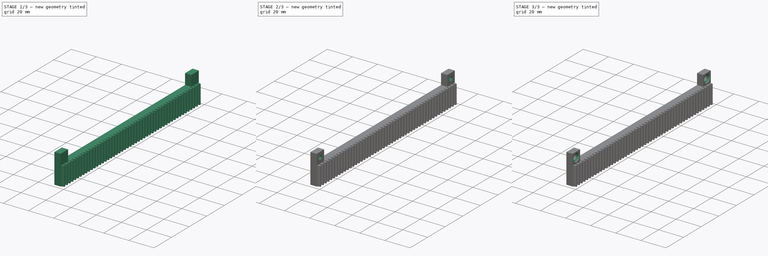
[diagram: build sequence overview — one tinted view per stage of 3, left to right]
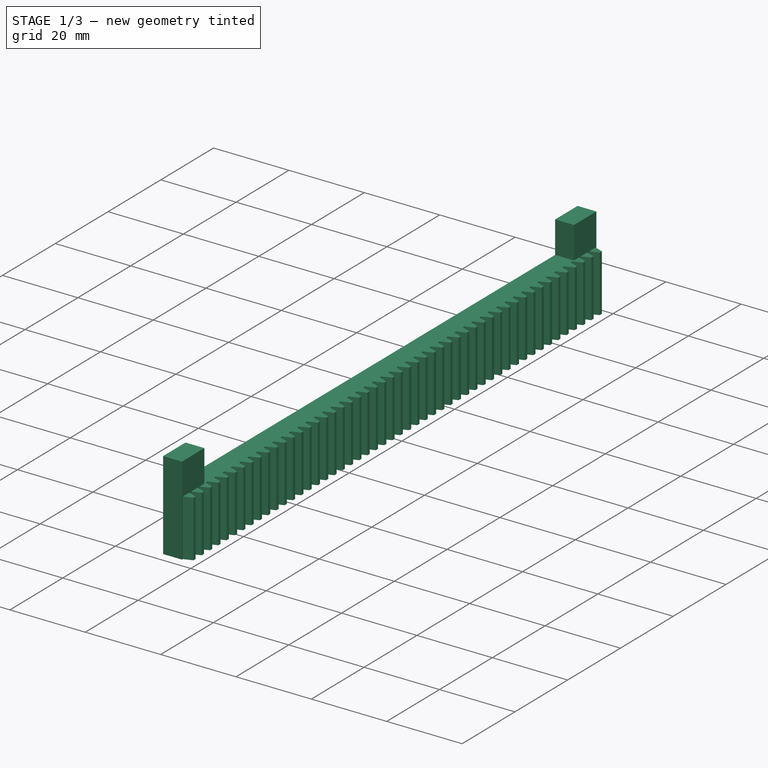
[diagram: stage 1 of 3 — iso view after this stage's code; geometry added in this stage tinted green]
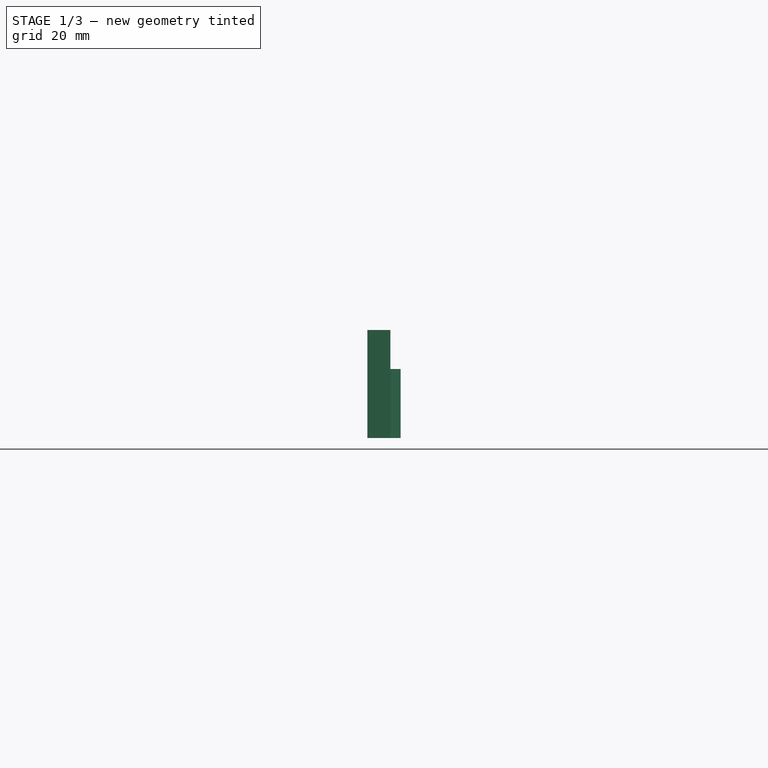
[diagram: stage 1 of 3 — front view after this stage's code; geometry added in this stage tinted green]
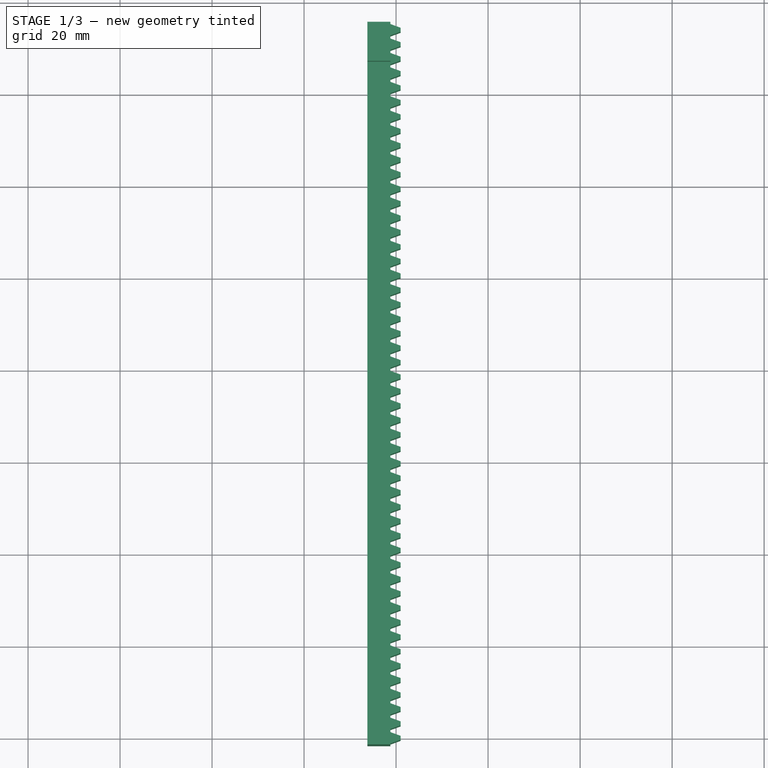
[diagram: stage 1 of 3 — top view after this stage's code; geometry added in this stage tinted green]
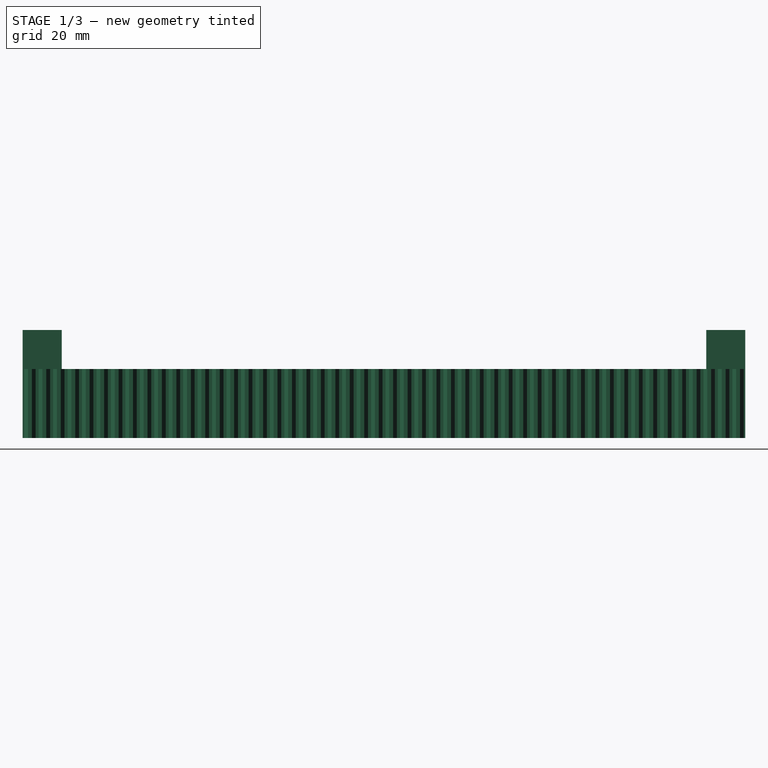
[diagram: stage 1 of 3 — right view after this stage's code; geometry added in this stage tinted green]
FCSTD DOCUMENT  (FreeCAD 0.19R)
Label: y-axis-track
License: All rights reserved
LicenseURL: http://en.wikipedia.org/wiki/All_rights_reserved
objects: Sketcher::SketchObject×3, PartDesign::Pocket×2, PartDesign::Chamfer×2, PartDesign::FeaturePython×1, PartDesign::Pad×1, PartDesign::Body×1
note: 15 computed .brp shape members not serialized (recipe doc carries the construction recipe); baked Part::Feature solids carry a one-line shape summary decoded from their .brp

FEATURE [PartDesign::FeaturePython] involuterack  # WARN: FeaturePython — macro-defined, semantics opaque (R4)
  AttacherType = Attacher::AttachEngine3D
  add_endings = true
  beta = 0
  clearance = 0.25
  double_helix = false
  head = 0
  height = 15
  module = 1
  pressure_angle = 20
  properties_from_tool = true
  simplified = false
  teeth = 50
  thickness = 5
  transverse_pitch = 3.14159
  version = 0.0.3
FEATURE [Sketcher::SketchObject] Sketch
  FullyConstrained = true
  MapMode = 5
  Placement = pos=(0,0,15) rot=(0,0,1;0rad)
  Support = -> [involuterack]
  sketch-geometry (8):
    g0: LineSegment StartX=-6.25 StartY=-1.5708 StartZ=0 EndX=-1.25 EndY=-1.5708 EndZ=0
    g1: LineSegment StartX=-1.25 StartY=-1.5708 StartZ=0 EndX=-1.25 EndY=6.9292 EndZ=0
    g2: LineSegment StartX=-1.25 StartY=6.9292 StartZ=0 EndX=-6.25 EndY=6.9292 EndZ=0
    g3: LineSegment StartX=-6.25 StartY=6.9292 StartZ=0 EndX=-6.25 EndY=-1.5708 EndZ=0
    g4: LineSegment StartX=-6.25 StartY=155.509 StartZ=0 EndX=-1.25 EndY=155.509 EndZ=0
    g5: LineSegment StartX=-1.25 StartY=155.509 StartZ=0 EndX=-1.25 EndY=147.009 EndZ=0
    g6: LineSegment StartX=-1.25 StartY=147.009 StartZ=0 EndX=-6.25 EndY=147.009 EndZ=0
    g7: LineSegment StartX=-6.25 StartY=147.009 StartZ=0 EndX=-6.25 EndY=155.509 EndZ=0
  constraints (24):
    c: Coincident(g0,g1)
    c: Coincident(g1,g2)
    c: Coincident(g2,g3)
    c: Coincident(g3,g0)
    c: Horizontal(g0)
    c: Horizontal(g2)
    c: Vertical(g1)
    c: Vertical(g3)
    c: DistanceX(g2,g2) = 5
    c: DistanceY(g3,g3) = 8.5
    c: DistanceX(g0,g-1) = 1.25
    c: DistanceY(g0,g-1) = 1.5708
    c: Coincident(g4,g5)
    c: Coincident(g5,g6)
    c: Coincident(g6,g7)
    c: Coincident(g7,g4)
    c: Horizontal(g4)
    c: Horizontal(g6)
    c: Vertical(g5)
    c: Vertical(g7)
    c: Equal(g4,g2)
    c: Equal(g3,g7)
    c: DistanceX(g5,g-1) = 1.25
    c: DistanceY(g-1,g5) = 147.009
FEATURE [PartDesign::Pad] Pad
  BaseFeature = -> involuterack
  Direction = (1,1,1)
  Length = 8.5
  Length2 = 100
  Profile = -> Sketch
  Type = 0
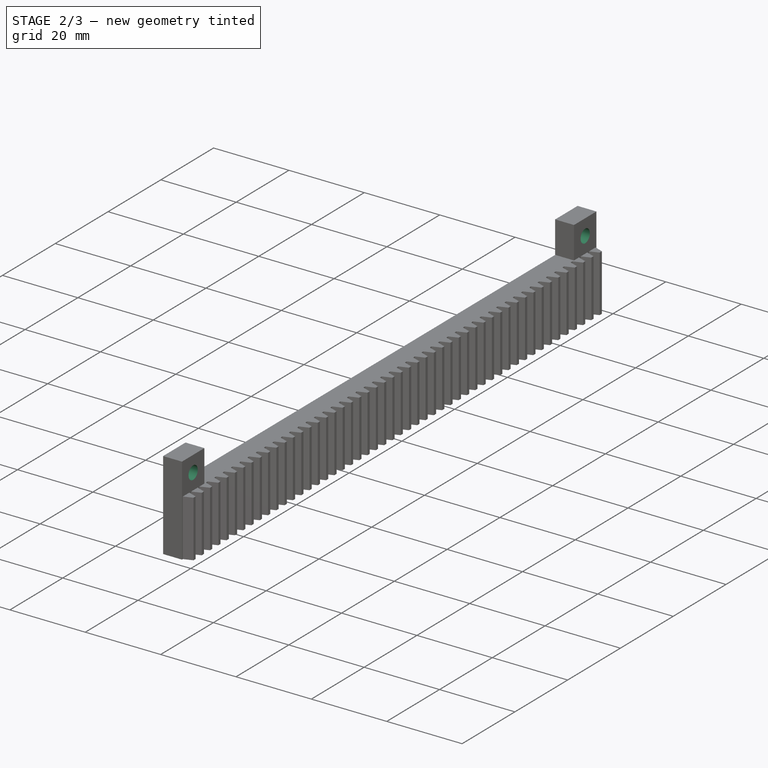
[diagram: stage 2 of 3 — iso view after this stage's code; geometry added in this stage tinted green]
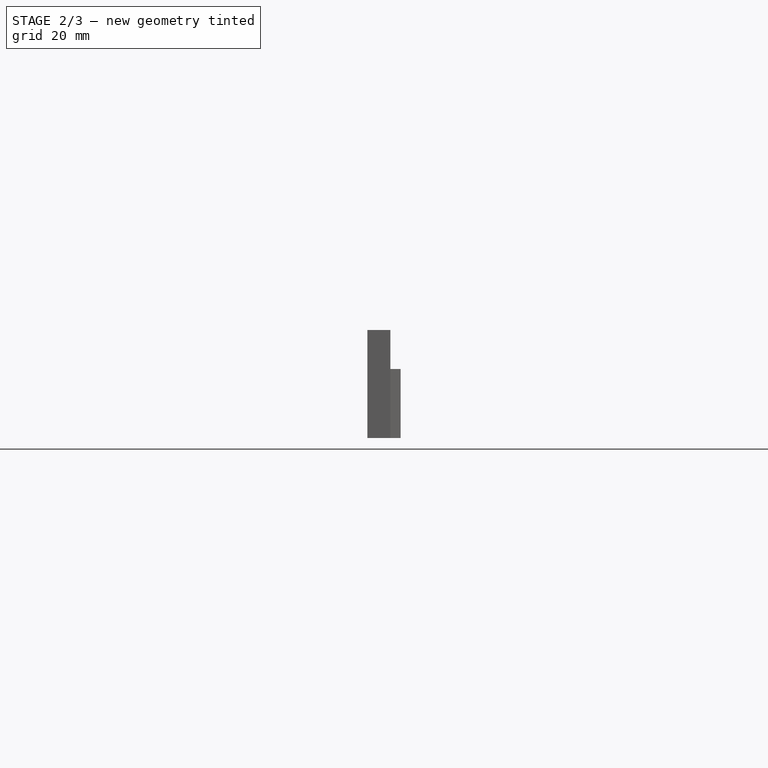
[diagram: stage 2 of 3 — front view after this stage's code; geometry added in this stage tinted green]
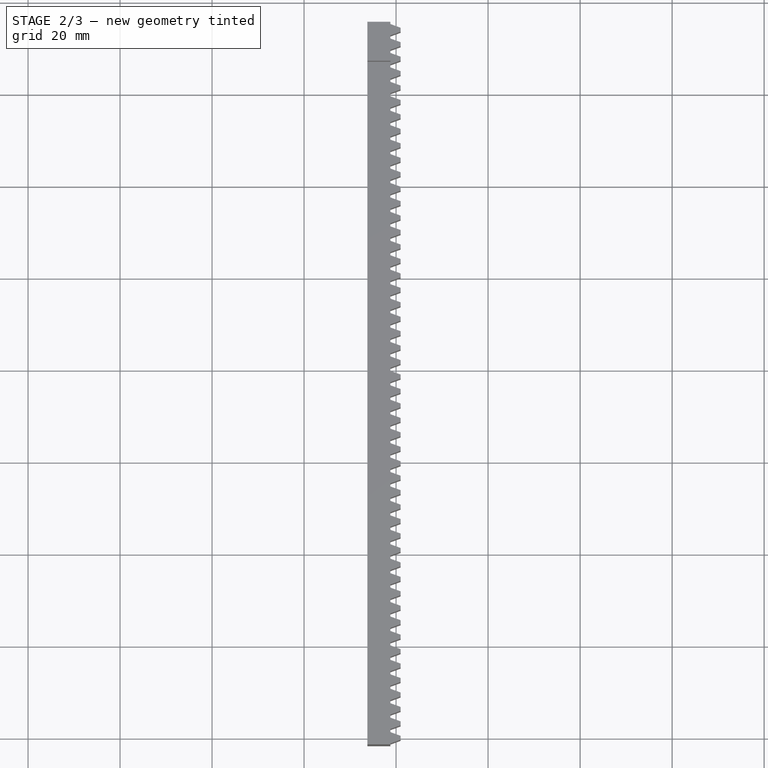
[diagram: stage 2 of 3 — top view after this stage's code; geometry added in this stage tinted green]
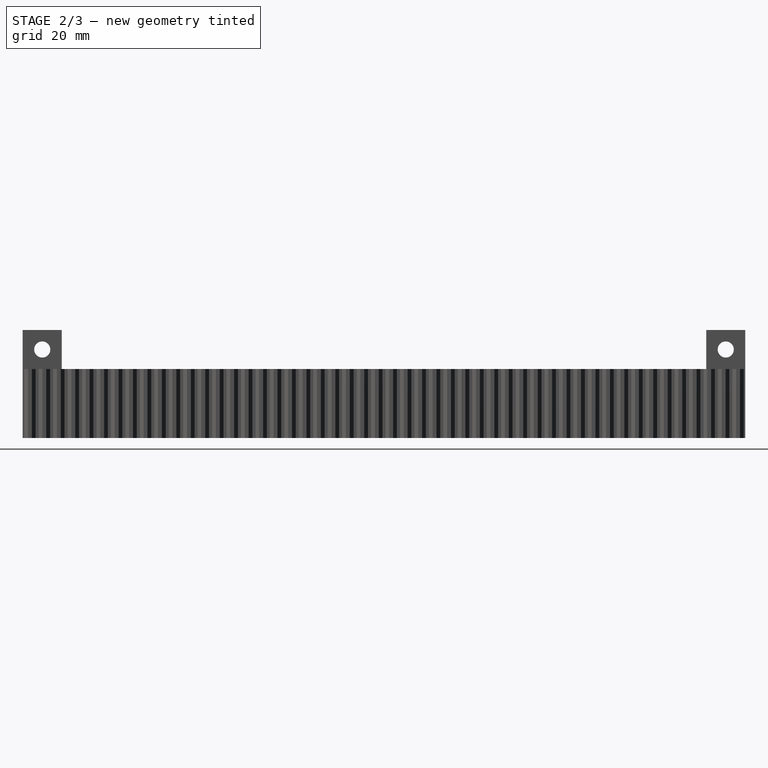
[diagram: stage 2 of 3 — right view after this stage's code; geometry added in this stage tinted green]
FEATURE [Sketcher::SketchObject] Sketch001
  FullyConstrained = true
  MapMode = 5
  Placement = pos=(-1.25,0,0) rot=(0.57735,0.57735,0.57735;2.0944rad)
  Support = -> [Pad]
  sketch-geometry (7):
    g0: LineSegment StartX=6.9292 StartY=23.5 StartZ=0 EndX=-1.5708 EndY=23.5 EndZ=0
    g1: LineSegment StartX=-1.5708 StartY=23.5 StartZ=0 EndX=-1.5708 EndY=15 EndZ=0
    g2: LineSegment StartX=-1.5708 StartY=15 StartZ=0 EndX=6.9292 EndY=15 EndZ=0
    g3: LineSegment StartX=6.9292 StartY=15 StartZ=0 EndX=6.9292 EndY=23.5 EndZ=0
    g4: LineSegment StartX=-1.5708 StartY=15 StartZ=0 EndX=6.9292 EndY=23.5 EndZ=0
    g5: LineSegment StartX=-1.5708 StartY=23.5 StartZ=0 EndX=6.9292 EndY=15 EndZ=0
    g6: Circle CenterX=2.6792 CenterY=19.25 CenterZ=0 NormalX=0 NormalY=0 NormalZ=1 AngleXU=0 Radius=1.75
  constraints (19):
    c: Coincident(g0,g1)
    c: Coincident(g1,g2)
    c: Coincident(g2,g3)
    c: Coincident(g3,g0)
    c: Horizontal(g0)
    c: Horizontal(g2)
    c: Vertical(g1)
    c: Vertical(g3)
    c: Equal(g0,g3)
    c: DistanceX(g0,g0) = 8.5
    c: DistanceY(g-1,g1) = 15
    c: DistanceX(g1,g-1) = 1.5708
    c: Coincident(g4,g1)
    c: Coincident(g4,g0)
    c: Coincident(g5,g0)
    c: Coincident(g5,g2)
    c: PointOnObject(g6,g4)
    c: PointOnObject(g6,g5)
    c: Diameter(g6) = 3.5
FEATURE [PartDesign::Pocket] Pocket
  BaseFeature = -> Pad
  Length = 5
  Length2 = 100
  Profile = -> Sketch001
  Type = 1
FEATURE [Sketcher::SketchObject] Sketch002
  FullyConstrained = true
  MapMode = 5
  Placement = pos=(-1.25,0,0) rot=(0.57735,0.57735,0.57735;2.0944rad)
  Support = -> [Pocket]
  sketch-geometry (7):
    g0: LineSegment StartX=155.509 StartY=23.5 StartZ=0 EndX=147.009 EndY=23.5 EndZ=0
    g1: LineSegment StartX=147.009 StartY=23.5 StartZ=0 EndX=147.009 EndY=15 EndZ=0
    g2: LineSegment StartX=147.009 StartY=15 StartZ=0 EndX=155.509 EndY=15 EndZ=0
    g3: LineSegment StartX=155.509 StartY=15 StartZ=0 EndX=155.509 EndY=23.5 EndZ=0
    g4: LineSegment StartX=155.509 StartY=15 StartZ=0 EndX=147.009 EndY=23.5 EndZ=0
    g5: LineSegment StartX=147.009 StartY=15 StartZ=0 EndX=155.509 EndY=23.5 EndZ=0
    g6: Circle CenterX=151.259 CenterY=19.25 CenterZ=0 NormalX=0 NormalY=0 NormalZ=1 AngleXU=0 Radius=1.75
  constraints (19):
    c: Coincident(g0,g1)
    c: Coincident(g1,g2)
    c: Coincident(g2,g3)
    c: Coincident(g3,g0)
    c: Horizontal(g0)
    c: Horizontal(g2)
    c: Vertical(g1)
    c: Vertical(g3)
    c: Coincident(g4,g2)
    c: Coincident(g4,g0)
    c: Coincident(g5,g1)
    c: Coincident(g5,g0)
    c: PointOnObject(g6,g5)
    c: PointOnObject(g6,g4)
    c: Equal(g0,g3)
    c: DistanceX(g0,g0) = 8.5
    c: DistanceY(g-1,g1) = 15
    c: DistanceX(g-1,g1) = 147.009
    c: Diameter(g6) = 3.5
FEATURE [PartDesign::Pocket] Pocket001
  BaseFeature = -> Pocket
  Length = 5
  Length2 = 100
  Profile = -> Sketch002
  Type = 1
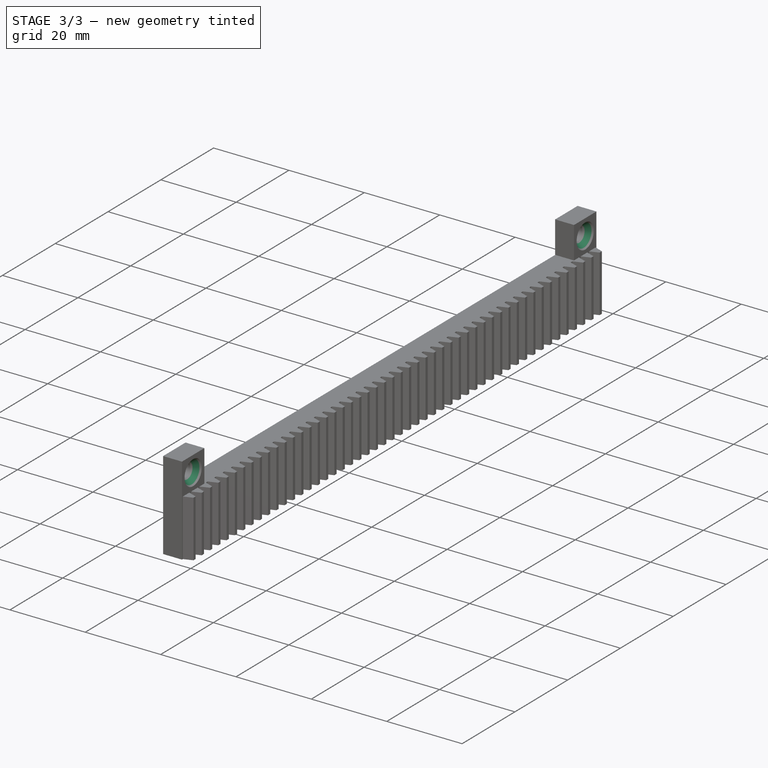
[diagram: stage 3 of 3 — iso view after this stage's code; geometry added in this stage tinted green]
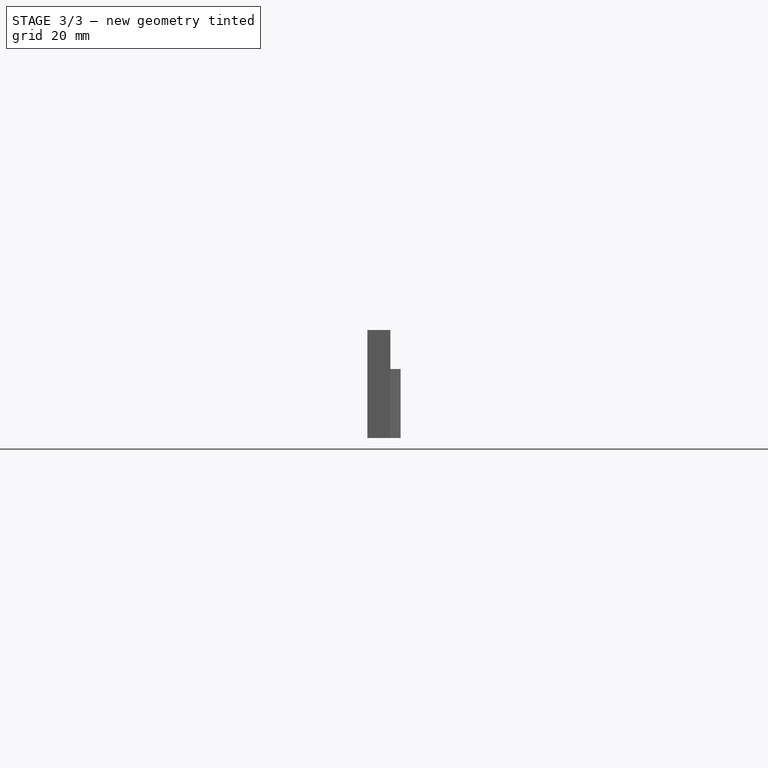
[diagram: stage 3 of 3 — front view after this stage's code; geometry added in this stage tinted green]
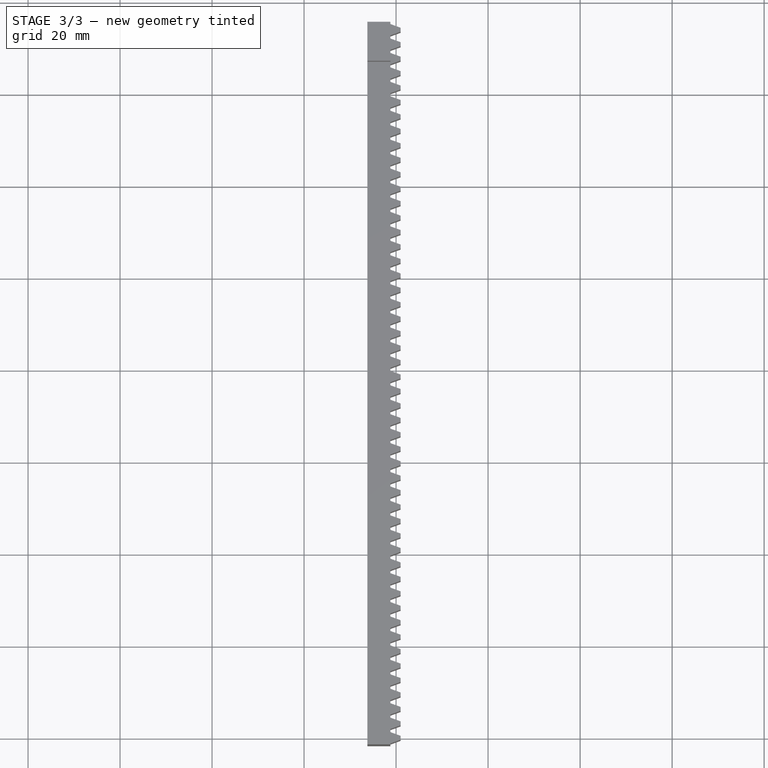
[diagram: stage 3 of 3 — top view after this stage's code; geometry added in this stage tinted green]
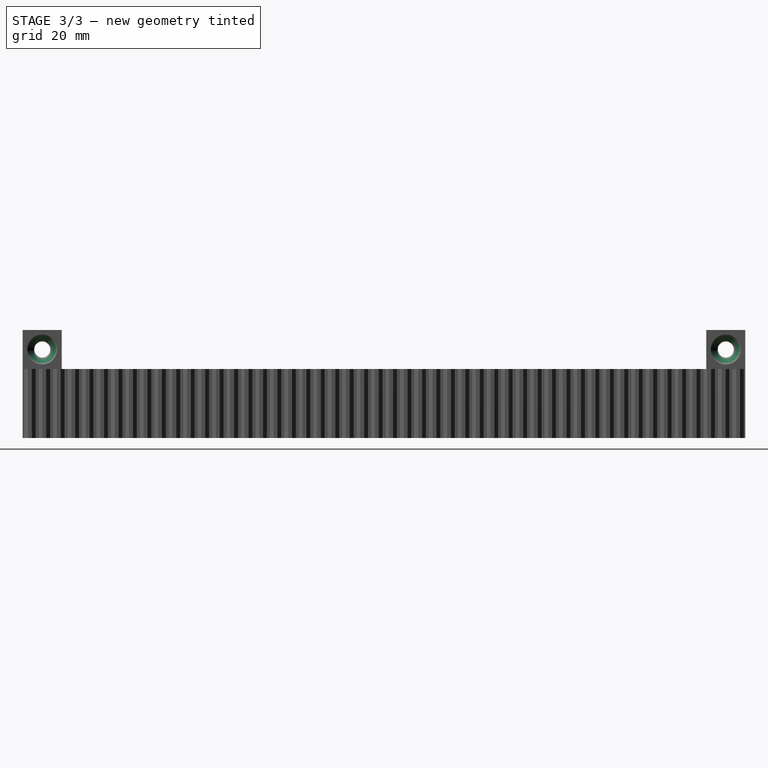
[diagram: stage 3 of 3 — right view after this stage's code; geometry added in this stage tinted green]
FEATURE [PartDesign::Chamfer] Chamfer
  Angle = 45
  Base = -> Pocket001 [Edge424]
  BaseFeature = -> Pocket001
  ChamferType = 1
  FlipDirection = false
  Size = 1.5
  Size2 = 2
  SupportTransform = false
FEATURE [PartDesign::Chamfer] Chamfer001
  Angle = 45
  Base = -> Chamfer [Edge444]
  BaseFeature = -> Chamfer
  ChamferType = 1
  FlipDirection = false
  Size = 1.5
  Size2 = 2
  SupportTransform = false
FEATURE [PartDesign::Body] Body
  Group = -> [involuterack,Sketch,Pad,Sketch001,Pocket,Sketch002,Pocket001,Chamfer,Chamfer001]
  Origin = -> Origin
  Tip = -> Chamfer001
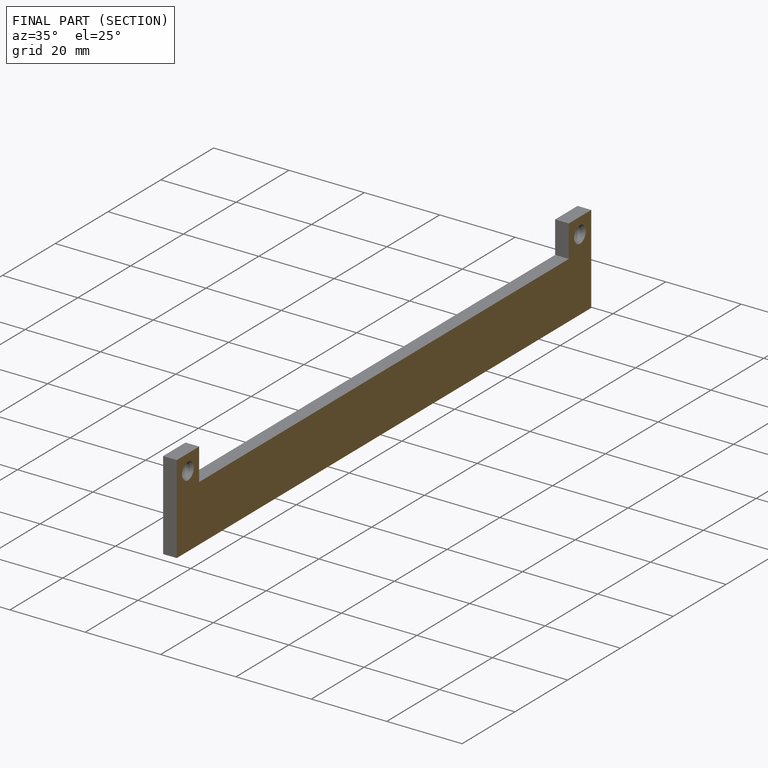
[diagram: finished part — half-section view (interior)]
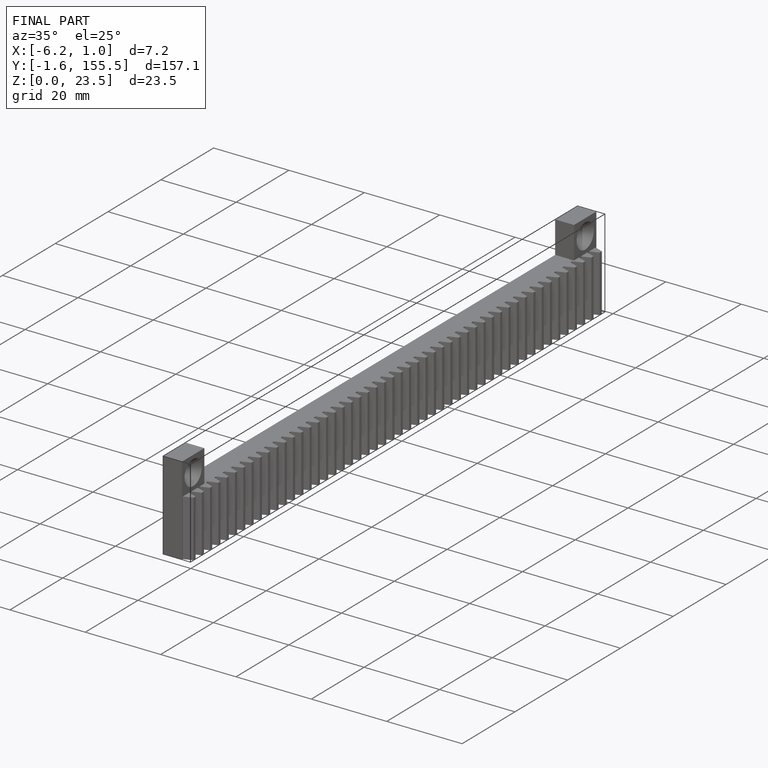
[diagram: finished part — iso view with bounding-box wireframe]
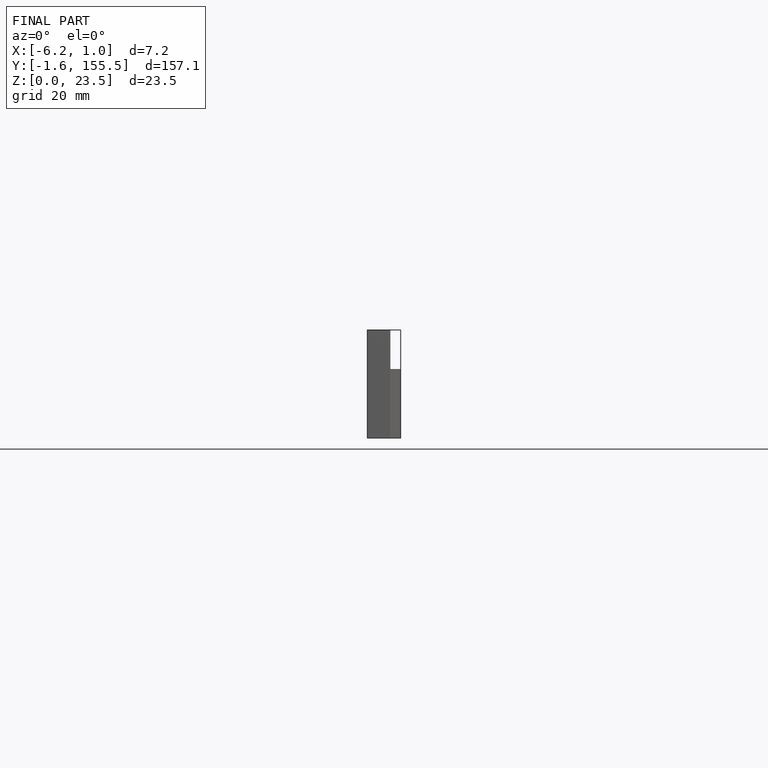
[diagram: finished part — front view with bounding-box wireframe]
